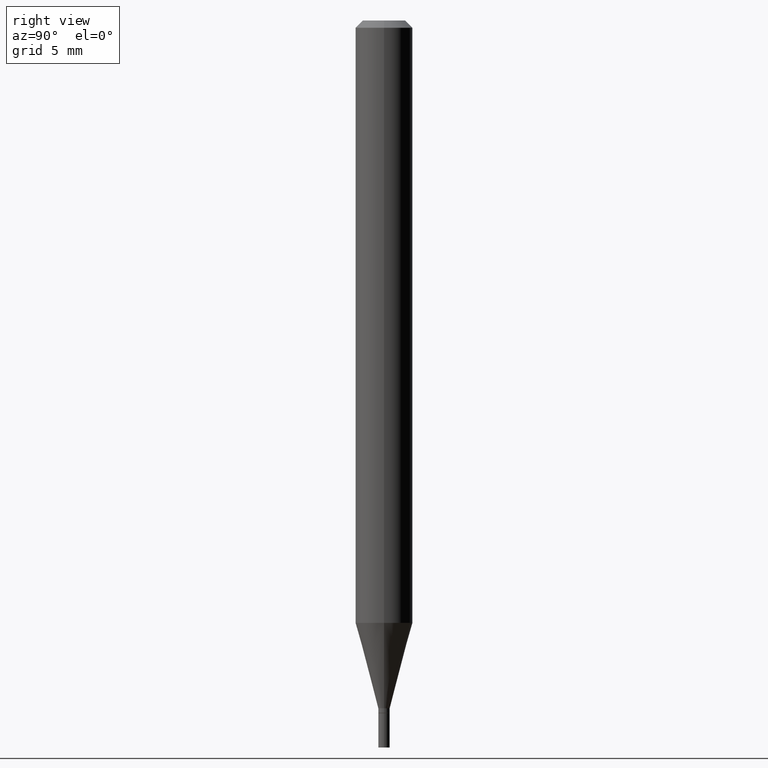
[diagram: clean part render]
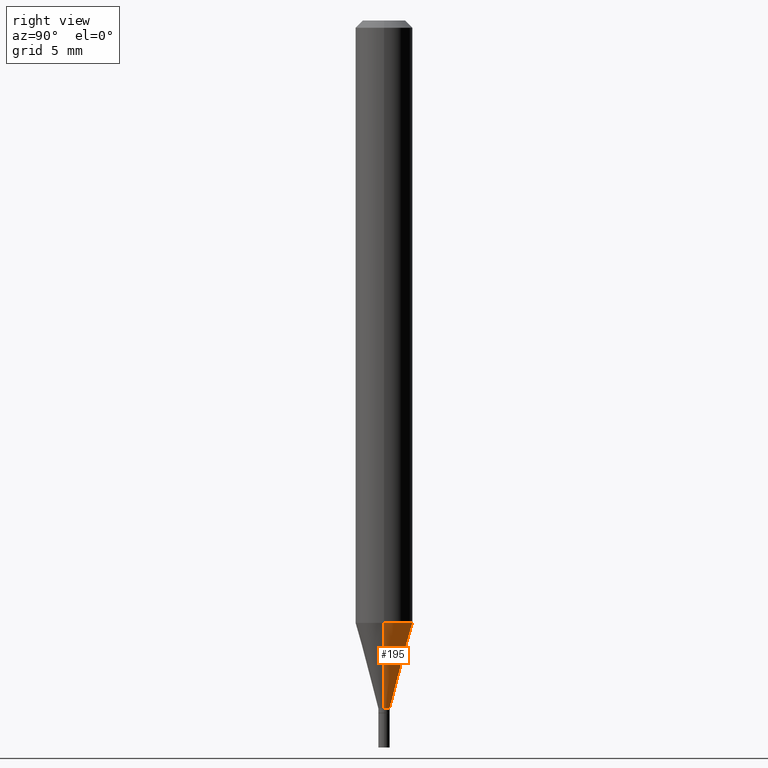
[diagram: same view with one face highlighted and labeled with its STEP entity id]
A machine part, right view. The second image highlights one B-rep face of the part: STEP entity #195.
In plain terms, the highlighted conical surface has half-angle 15 deg.
Its self-contained STEP definition (entity closure, byte-faithful):
#25 = EDGE_CURVE ( 'NONE', #157, #327, #385, .T. ) ;
#35 = CARTESIAN_POINT ( 'NONE',  ( -0.05904999999999999832, -3.919499955787072456E-15, -1.242760599342371153 ) ) ;
#52 = AXIS2_PLACEMENT_3D ( 'NONE', #411, #440, #95 ) ;
#64 = EDGE_LOOP ( 'NONE', ( #74, #324, #345, #303 ) ) ;
#67 = DIRECTION ( 'NONE',  ( -2.445468806185136597E-29, 3.491481338843145583E-15, 1.000000000000000000 ) ) ;
#74 = ORIENTED_EDGE ( 'NONE', *, *, #424, .T. ) ;
#83 = CONICAL_SURFACE ( 'NONE', #242, 0.01179999999999992166, 0.2617993877991502960 ) ;
#89 = DIRECTION ( 'NONE',  ( -2.445468806185136597E-29, 3.491481338843145583E-15, 1.000000000000000000 ) ) ;
#92 = DIRECTION ( 'NONE',  ( -0.2588190451025216832, 5.211531920934551831E-15, 0.9659258262890679791 ) ) ;
#95 = DIRECTION ( 'NONE',  ( 1.000000000000000000, -6.982962677686264344E-15, 0.000000000000000000 ) ) ;
#116 = VECTOR ( 'NONE', #92, 39.37007874015748143 ) ;
#119 = DIRECTION ( 'NONE',  ( 1.000000000000000000, -6.982962677686264344E-15, 0.000000000000000000 ) ) ;
#157 = VERTEX_POINT ( 'NONE', #207 ) ;
#171 = DIRECTION ( 'NONE',  ( 1.000000000000000000, -6.982962677686265133E-15, 0.000000000000000000 ) ) ;
#185 = CARTESIAN_POINT ( 'NONE',  ( 0.05904999999999999832, -4.751419387370785291E-15, -1.242760599342371153 ) ) ;
#195 = ADVANCED_FACE ( 'NONE', ( #390 ), #83, .T. ) ;
#201 = DIRECTION ( 'NONE',  ( 0.2588190451025216832, 1.565188264969619798E-15, 0.9659258262890679791 ) ) ;
#207 = CARTESIAN_POINT ( 'NONE',  ( 0.01179999999999992166, -5.037160127549005190E-15, -1.419100000000000250 ) ) ;
#220 = VERTEX_POINT ( 'NONE', #243 ) ;
#242 = AXIS2_PLACEMENT_3D ( 'NONE', #353, #89, #119 ) ;
#243 = CARTESIAN_POINT ( 'NONE',  ( -0.01179999999999992166, -4.395208540459845312E-15, -1.419100000000000250 ) ) ;
#248 = CARTESIAN_POINT ( 'NONE',  ( 0.01179999999999992166, -5.037160127549005190E-15, -1.419100000000000250 ) ) ;
#263 = VECTOR ( 'NONE', #201, 39.37007874015748143 ) ;
#275 = CIRCLE ( 'NONE', #52, 0.01179999999999992166 ) ;
#288 = CARTESIAN_POINT ( 'NONE',  ( -0.01179999999999992166, -4.870917125132617379E-15, -1.419100000000000250 ) ) ;
#293 = LINE ( 'NONE', #288, #116 ) ;
#303 = ORIENTED_EDGE ( 'NONE', *, *, #25, .F. ) ;
#324 = ORIENTED_EDGE ( 'NONE', *, *, #458, .T. ) ;
#327 = VERTEX_POINT ( 'NONE', #185 ) ;
#345 = ORIENTED_EDGE ( 'NONE', *, *, #401, .F. ) ;
#353 = CARTESIAN_POINT ( 'NONE',  ( 3.470364782857327956E-29, -4.954761167952307855E-15, -1.419100000000000250 ) ) ;
#372 = CIRCLE ( 'NONE', #430, 0.05904999999999999832 ) ;
#385 = LINE ( 'NONE', #248, #263 ) ;
#390 = FACE_OUTER_BOUND ( 'NONE', #64, .T. ) ;
#401 = EDGE_CURVE ( 'NONE', #327, #410, #372, .T. ) ;
#410 = VERTEX_POINT ( 'NONE', #35 ) ;
#411 = CARTESIAN_POINT ( 'NONE',  ( 3.470364782857327956E-29, -4.954761167952307855E-15, -1.419100000000000250 ) ) ;
#424 = EDGE_CURVE ( 'NONE', #157, #220, #275, .T. ) ;
#430 = AXIS2_PLACEMENT_3D ( 'NONE', #439, #67, #171 ) ;
#439 = CARTESIAN_POINT ( 'NONE',  ( 3.039132279247712903E-29, -4.339075441253411949E-15, -1.242760599342371153 ) ) ;
#440 = DIRECTION ( 'NONE',  ( -2.445468806185136597E-29, 3.491481338843145583E-15, 1.000000000000000000 ) ) ;
#458 = EDGE_CURVE ( 'NONE', #220, #410, #293, .T. ) ;